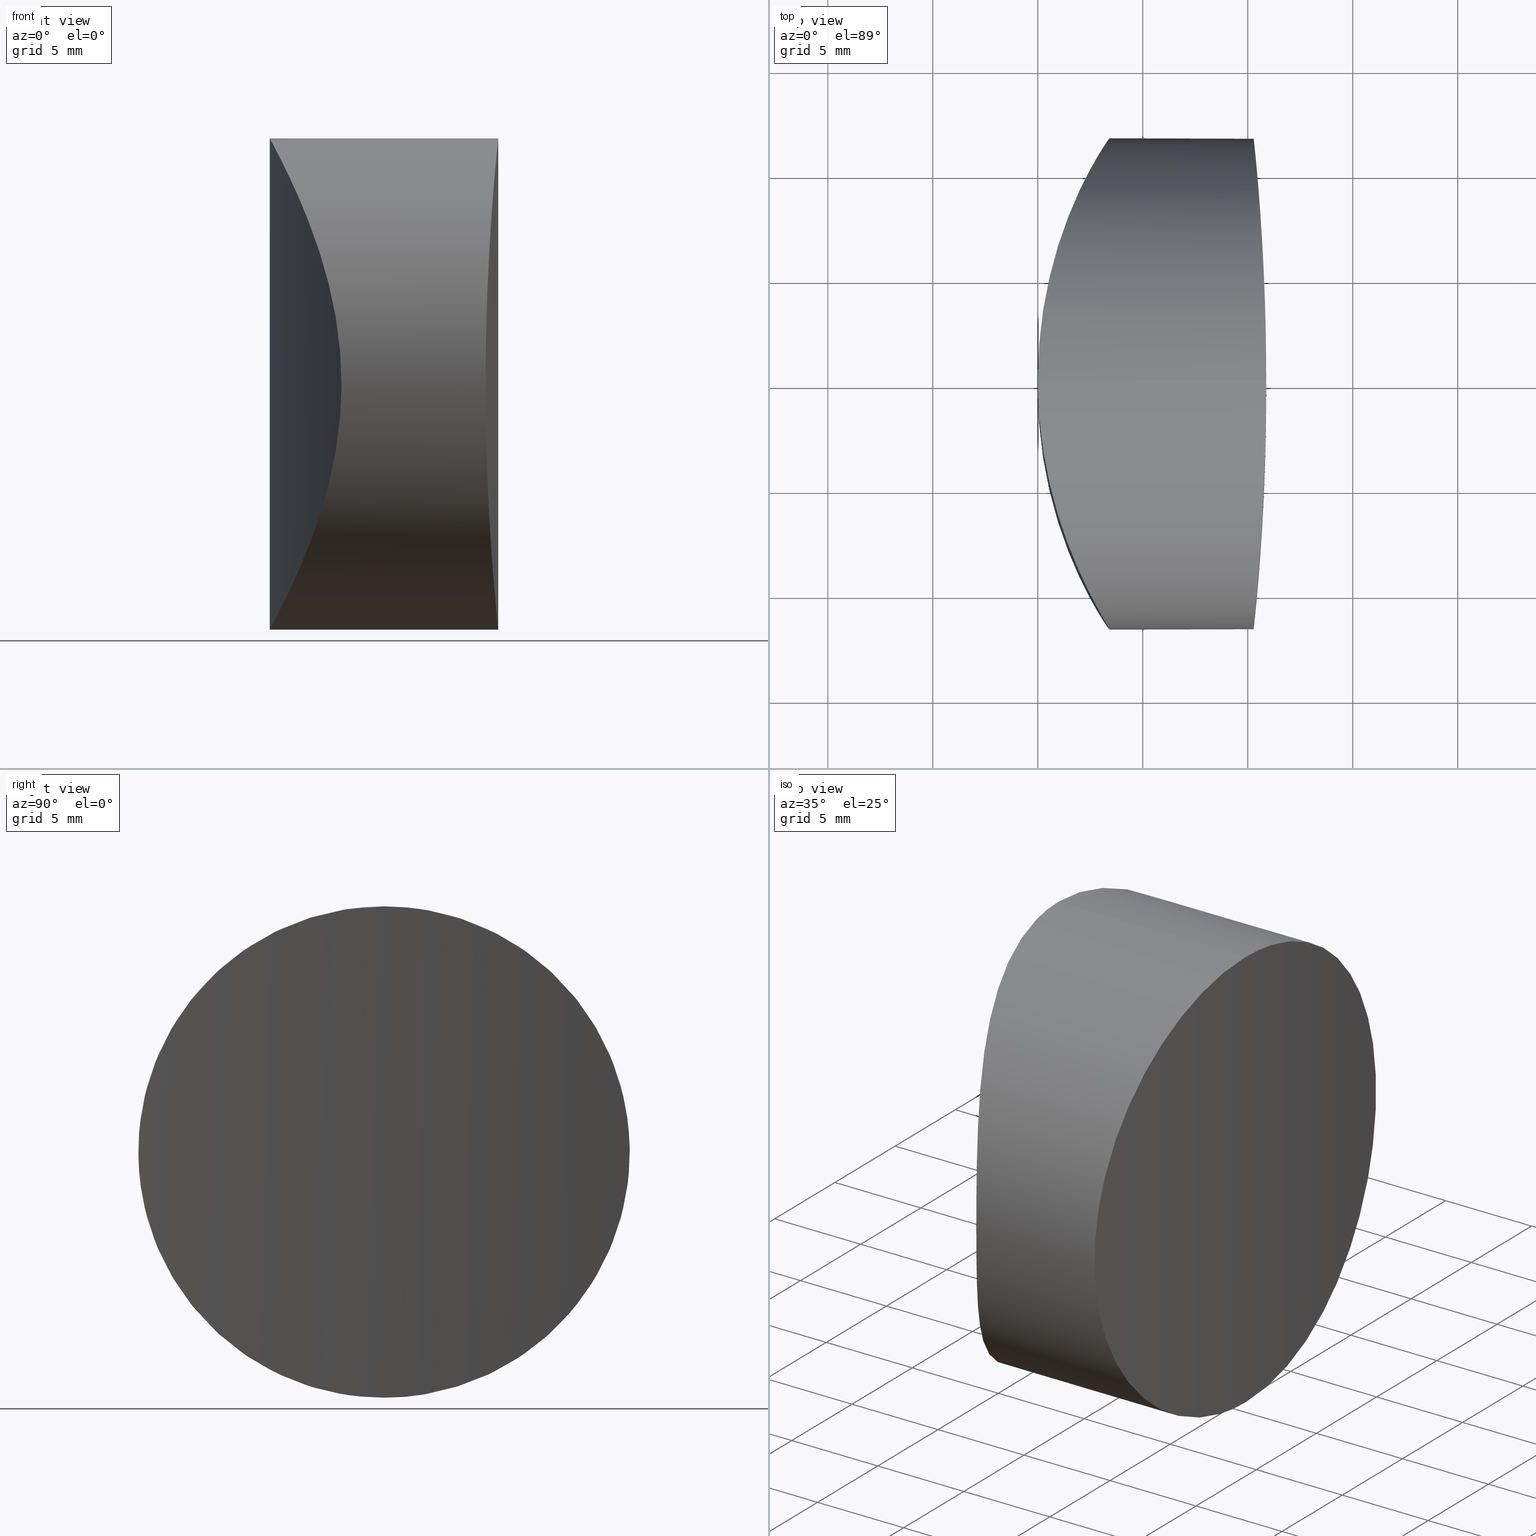
[diagram: canonical four-view strip — front | top / right | iso, engineering-drawing reading convention]
A machine part, canonical four-view strip (front | top / right | iso — engineering-drawing reading convention). The complete STEP part file that produces these views, byte-faithful:
ISO-10303-21;
HEADER;
FILE_DESCRIPTION (( 'STEP AP203' ),
    '1' );
FILE_NAME ('159005.STEP',
    '2024-12-10T01:32:58',
    ( '' ),
    ( '' ),
    'SwSTEP 2.0',
    'SolidWorks 2020',
    '' );
FILE_SCHEMA (( 'CONFIG_CONTROL_DESIGN' ));
ENDSEC;

DATA;
#1 = CARTESIAN_POINT ( 'NONE',  ( 0.2171290689899663673, 3.087936043502376382, 0.4081436948085568894 ) ) ;
#2 = B_SPLINE_CURVE_WITH_KNOTS ( 'NONE', 3,
 ( #18, #132, #47, #161, #20, #249, #364, #106, #76, #194, #311, #54, #118, #174, #166, #200, #288, #89, #198, #32, #30, #295, #234, #56, #113, #289, #145, #26, #171, #368, #317, #262, #345, #82, #297, #315, #139, #291, #3, #28, #204, #142, #116, #320, #255, #111, #60, #257, #53, #259 ),
 .UNSPECIFIED., .F., .F.,
 ( 4, 2, 2, 2, 2, 2, 2, 2, 2, 2, 2, 2, 2, 2, 2, 2, 2, 2, 2, 2, 2, 2, 2, 2, 4 ),
 ( 0.000000000000000000, 0.002332460034129029639, 0.003498690051193543375, 0.004664920068258057544, 0.006997380102387087616, 0.008163610119451604821, 0.009329840136516120291, 0.01049607015358063576, 0.01166230017064515297, 0.01399476020477418217, 0.01516099022183869591, 0.01632722023890320964, 0.01865968027303223017, 0.02099214030716125418, 0.02215837032422577138, 0.02332460034129027818, 0.02565706037541928136, 0.02682329039248378469, 0.02798952040954828455, 0.02915575042661279134, 0.03032198044367729120, 0.03265444047780629439, 0.03382067049487080118, 0.03498690051193531492, 0.03731936054606431463 ),
 .UNSPECIFIED. ) ;
#3 = CARTESIAN_POINT ( 'NONE',  ( 1.422428601362523581, -7.740781751606417238, 20.48137352358924801 ) ) ;
#4 = CARTESIAN_POINT ( 'NONE',  ( 10.88000000000002920, -0.7730682426357810000, 23.40000000000000213 ) ) ;
#5 = CARTESIAN_POINT ( 'NONE',  ( 1.211109342946811829, 7.161533304904742714, 20.95980323906664822 ) ) ;
#6 = AXIS2_PLACEMENT_3D ( 'NONE', #219, #220, #333 ) ;
#7 = COORDINATED_UNIVERSAL_TIME_OFFSET ( 8, 0, .AHEAD. ) ;
#8 = CARTESIAN_POINT ( 'NONE',  ( 10.48185059224751470, -9.520135231551074995, 4.888029907684962261 ) ) ;
#9 = CARTESIAN_POINT ( 'NONE',  ( 10.79291427432880823, -4.495804914807727037, 0.8781744884664779427 ) ) ;
#10 = PERSON_AND_ORGANIZATION_ROLE ( 'design_supplier' ) ;
#11 = CARTESIAN_POINT ( 'NONE',  ( 10.88000000000002387, 1.432836755002400721E-15, -1.134230257881103284E-16 ) ) ;
#12 = APPROVAL_PERSON_ORGANIZATION ( #123, #140, #181 ) ;
#13 = CARTESIAN_POINT ( 'NONE',  ( 10.50122807854665830, 9.293574890754799256, 4.550848265020642103 ) ) ;
#14 = DATE_AND_TIME ( #65, #126 ) ;
#15 = CARTESIAN_POINT ( 'NONE',  ( 10.31813825483695446, -11.30293830173775937, 14.74630687129934259 ) ) ;
#16 = DESIGN_CONTEXT ( 'detailed design', #264, 'design' ) ;
#17 = CYLINDRICAL_SURFACE ( 'NONE', #6, 21.74000000000001265 ) ;
#18 = CARTESIAN_POINT ( 'NONE',  ( -1.387778780781445676E-14, 1.432836755002403087E-15, 0.000000000000000000 ) ) ;
#19 = APPROVAL_PERSON_ORGANIZATION ( #178, #292, #128 ) ;
#20 = CARTESIAN_POINT ( 'NONE',  ( 0.2155747700643544651, -3.077103223239908925, 0.4051839034303297837 ) ) ;
#21 = CARTESIAN_POINT ( 'NONE',  ( 10.39421116239602938, 10.51531563082536458, 16.88705114881175717 ) ) ;
#22 = VERTEX_POINT ( 'NONE', #313 ) ;
#23 = CARTESIAN_POINT ( 'NONE',  ( 10.83986262752479313, 3.046402558084049694, 23.00291265617754988 ) ) ;
#24 = LOCAL_TIME ( 9, 32, 58.00000000000000000, #70 ) ;
#25 =( LENGTH_UNIT ( ) NAMED_UNIT ( * ) SI_UNIT ( .MILLI., .METRE. ) );
#26 = CARTESIAN_POINT ( 'NONE',  ( 3.223265934236171582, -11.39150033726429179, 14.39685331042552541 ) ) ;
#27 = CARTESIAN_POINT ( 'NONE',  ( 3.416977289869434831, 11.70018969140565268, 10.91256642571154600 ) ) ;
#28 = CARTESIAN_POINT ( 'NONE',  ( 1.210284504267568284, -7.159203260769887223, 20.96164303770010306 ) ) ;
#29 = DIRECTION ( 'NONE',  ( -0.000000000000000000, -0.000000000000000000, -1.000000000000000000 ) ) ;
#30 = CARTESIAN_POINT ( 'NONE',  ( 3.025179195936434251, -11.06349310497741101, 7.873883219777335185 ) ) ;
#31 = CARTESIAN_POINT ( 'NONE',  ( -1.387778780781445676E-14, 1.432836755002403087E-15, 0.000000000000000000 ) ) ;
#32 = CARTESIAN_POINT ( 'NONE',  ( 2.947937650750859007, -10.93227795703746885, 7.514390368155059008 ) ) ;
#33 = CARTESIAN_POINT ( 'NONE',  ( 1.107008075324728225, 6.856855324027286258, 21.18778377512142796 ) ) ;
#34 = APPROVAL_DATE_TIME ( #303, #292 ) ;
#35 = CARTESIAN_POINT ( 'NONE',  ( 10.80586506574320538, 4.125148095135657833, 0.7446365564376484780 ) ) ;
#36 = B_SPLINE_CURVE_WITH_KNOTS ( 'NONE', 3,
 ( #241, #353, #98, #124, #73, #217, #35, #93, #184, #277, #129, #304, #41, #155, #13, #243, #360, #99, #218, #149, #269, #325, #66, #130, #312, #162, #284, #157, #51, #165, #21, #279, #286, #49, #340, #225, #78, #244, #196, #134, #251, #338, #80, #23, #136, #361, #280, #366 ),
 .UNSPECIFIED., .F., .F.,
 ( 4, 2, 2, 2, 2, 2, 2, 2, 2, 1, 2, 2, 2, 2, 2, 2, 2, 2, 2, 2, 2, 1, 2, 2, 4 ),
 ( 0.01828928846055503585, 0.02057544053146269369, 0.02171851656691652435, 0.02286159260237035501, 0.02514774467327800939, 0.02629082070873184004, 0.02743389674418566723, 0.02972004881509332508, 0.03086312485054715574, 0.03200620088600098639, 0.03314927692145481358, 0.03429235295690864771, 0.03657850502781630209, 0.03886465709872396340, 0.04000773313417779753, 0.04115080916963162472, 0.04343696124053927909, 0.04458003727599310628, 0.04572311331144694041, 0.04800926538235458785, 0.04915234141780841504, 0.05029541745326224222, 0.05143849348871606941, 0.05258156952416989660, 0.05486772159507755098 ),
 .UNSPECIFIED. ) ;
#37 = CARTESIAN_POINT ( 'NONE',  ( 10.65733766431639573, -7.149049959769872231, 2.406345876367574022 ) ) ;
#38 = DATE_AND_TIME ( #212, #48 ) ;
#39 = CARTESIAN_POINT ( 'NONE',  ( 10.53980463767048725, -8.802363927132297761, 3.982701874530870434 ) ) ;
#40 = APPROVAL_DATE_TIME ( #38, #140 ) ;
#41 = CARTESIAN_POINT ( 'NONE',  ( 10.59912731714409517, 8.000667279729501757, 3.154557880954746540 ) ) ;
#42 = CARTESIAN_POINT ( 'NONE',  ( 10.87213610434040767, -1.537509865537029619, 0.07587314612748741194 ) ) ;
#43 = FACE_OUTER_BOUND ( 'NONE', #362, .T. ) ;
#44 = DIRECTION ( 'NONE',  ( -0.000000000000000000, -0.000000000000000000, -1.000000000000000000 ) ) ;
#45 = DIRECTION ( 'NONE',  ( -0.000000000000000000, -0.000000000000000000, -1.000000000000000000 ) ) ;
#46 = EDGE_CURVE ( 'NONE', #195, #252, #167, .T. ) ;
#47 = CARTESIAN_POINT ( 'NONE',  ( 0.04285845775192359541, -1.563333944474102788, 0.07910009200988064870 ) ) ;
#48 = LOCAL_TIME ( 9, 32, 58.00000000000000000, #7 ) ;
#49 = CARTESIAN_POINT ( 'NONE',  ( 10.50090090195983983, 9.290886234281821032, 18.82163880718880478 ) ) ;
#50 = ORIENTED_EDGE ( 'NONE', *, *, #125, .F. ) ;
#51 = CARTESIAN_POINT ( 'NONE',  ( 10.33954596989061869, 11.08605908923653161, 15.45988132495216583 ) ) ;
#52 = ORIENTED_EDGE ( 'NONE', *, *, #125, .T. ) ;
#53 = CARTESIAN_POINT ( 'NONE',  ( -1.392860978464971162E-14, -0.7902025822976713743, 23.39999999999998792 ) ) ;
#54 = CARTESIAN_POINT ( 'NONE',  ( 1.422744937138785248, -7.741579786913382222, 2.919370312651639043 ) ) ;
#55 = CARTESIAN_POINT ( 'NONE',  ( 0.2155747700643547149, 3.077103223239909813, 22.99481609656967152 ) ) ;
#56 = CARTESIAN_POINT ( 'NONE',  ( 3.365384741177640748, -11.62041709446674354, 10.13239785273151305 ) ) ;
#57 = CC_DESIGN_DATE_AND_TIME_ASSIGNMENT ( #14, #216, ( #231 ) ) ;
#58 = CARTESIAN_POINT ( 'NONE',  ( 0.4035763903870810410, 4.185088588868998372, 22.63260120139583975 ) ) ;
#59 = MANIFOLD_SOLID_BREP ( '�г�-����1', #236 ) ;
#60 = CARTESIAN_POINT ( 'NONE',  ( 0.1660015290229336082, -2.708688890726477894, 23.08877113486291321 ) ) ;
#61 = FACE_OUTER_BOUND ( 'NONE', #163, .T. ) ;
#62 = PERSON_AND_ORGANIZATION_ROLE ( 'creator' ) ;
#63 = PRODUCT ( '159005', '159005', '', ( #172 ) ) ;
#64 = CARTESIAN_POINT ( 'NONE',  ( 0.8086732756216764573, 5.911348775935024058, 21.82541254673819253 ) ) ;
#65 = CALENDAR_DATE ( 2024, 10, 12 ) ;
#66 = CARTESIAN_POINT ( 'NONE',  ( 10.28571339003972085, 11.62409991383637653, 10.16228933993476424 ) ) ;
#67 = PERSON_AND_ORGANIZATION ( #233, #101 ) ;
#68 = CARTESIAN_POINT ( 'NONE',  ( 10.76408821987714504, -5.187217375606534731, 22.21523339276854969 ) ) ;
#69 = CARTESIAN_POINT ( 'NONE',  ( 10.83986384809086800, -3.046356310864096972, 0.3970750748709923617 ) ) ;
#70 = COORDINATED_UNIVERSAL_TIME_OFFSET ( 8, 0, .AHEAD. ) ;
#71 = CARTESIAN_POINT ( 'NONE',  ( 10.73107924789856327, -5.858753475496249585, 21.85621316170171369 ) ) ;
#72 = EDGE_CURVE ( 'NONE', #195, #252, #278, .T. ) ;
#73 = CARTESIAN_POINT ( 'NONE',  ( 10.84043444140815815, 3.025119960359377469, 0.3913282216214603038 ) ) ;
#74 = CARTESIAN_POINT ( 'NONE',  ( 23.39999999999999858, 0.000000000000000000, 23.39999999999999858 ) ) ;
#75 = LINE ( 'NONE', #74, #143 ) ;
#76 = CARTESIAN_POINT ( 'NONE',  ( 0.8086732756216740148, -5.911348775935032052, 1.574587453261813152 ) ) ;
#77 = ORIENTED_EDGE ( 'NONE', *, *, #104, .T. ) ;
#78 = CARTESIAN_POINT ( 'NONE',  ( 10.61832271869568167, 7.737239475405381484, 20.50943713969718729 ) ) ;
#79 = ORIENTED_EDGE ( 'NONE', *, *, #337, .F. ) ;
#80 = CARTESIAN_POINT ( 'NONE',  ( 10.81793448439627525, 3.778384550068051961, 22.77972081105326296 ) ) ;
#81 = EDGE_LOOP ( 'NONE', ( #77, #52 ) ) ;
#82 = CARTESIAN_POINT ( 'NONE',  ( 2.184259034293712265, -9.500337694175719605, 18.53938992836294020 ) ) ;
#83 = CARTESIAN_POINT ( 'NONE',  ( 0.3350743667355896016, 3.820812002700966659, 22.76538885633120657 ) ) ;
#84 = APPLICATION_PROTOCOL_DEFINITION ( 'international standard', 'config_control_design', 1994, #254 ) ;
#85 = CARTESIAN_POINT ( 'NONE',  ( -1.366941770278989887E-14, 0.7891109655432210213, 3.794707603699258616E-16 ) ) ;
#86 = ADVANCED_FACE ( 'NONE', ( #61 ), #293, .T. ) ;
#87 = DIRECTION ( 'NONE',  ( 0.000000000000000000, 0.000000000000000000, 1.000000000000000000 ) ) ;
#88 = CARTESIAN_POINT ( 'NONE',  ( 1.530558240007198867, 8.017961239284881358, 3.171097245523014418 ) ) ;
#89 = CARTESIAN_POINT ( 'NONE',  ( 2.500510767972878856, -10.13363792806505614, 5.803525538992461819 ) ) ;
#90 = CARTESIAN_POINT ( 'NONE',  ( 2.500892373585566819, 10.13447688950725478, 5.804487998628315992 ) ) ;
#91 = CARTESIAN_POINT ( 'NONE',  ( 1.105855354865704410, 6.853327346297099609, 2.209725243393915850 ) ) ;
#92 = PERSON_AND_ORGANIZATION ( #233, #101 ) ;
#93 = CARTESIAN_POINT ( 'NONE',  ( 10.76409157544206607, 5.187142535174808167, 1.184730518471958094 ) ) ;
#94 = DATE_AND_TIME ( #354, #120 ) ;
#95 = CARTESIAN_POINT ( 'NONE',  ( 10.28570731973209718, -11.62412606199242404, 10.16681707393848022 ) ) ;
#96 = CARTESIAN_POINT ( 'NONE',  ( 10.35228852613060901, -10.95532912848157636, 7.574760721380108031 ) ) ;
#97 = SECURITY_CLASSIFICATION_LEVEL ( 'unclassified' ) ;
#98 = CARTESIAN_POINT ( 'NONE',  ( 10.87214040462832898, 1.533100186662105235, 0.07586331815639904552 ) ) ;
#99 = CARTESIAN_POINT ( 'NONE',  ( 10.39581746494011760, 10.49539491236451560, 6.515117555941806415 ) ) ;
#100 = UNCERTAINTY_MEASURE_WITH_UNIT (LENGTH_MEASURE( 1.000000000000000082E-05 ), #25, 'distance_accuracy_value', 'NONE');
#101 = ORGANIZATION ( 'δָ��', 'δָ��', '' ) ;
#102 = FACE_OUTER_BOUND ( 'NONE', #309, .T. ) ;
#103 = VERTEX_POINT ( 'NONE', #203 ) ;
#104 = EDGE_CURVE ( 'NONE', #22, #103, #110, .T. ) ;
#105 = CYLINDRICAL_SURFACE ( 'NONE', #187, 113.9600000000000222 ) ;
#106 = CARTESIAN_POINT ( 'NONE',  ( 0.6296649646665276601, -5.244302668428569625, 1.213140049391025821 ) ) ;
#107 = FACE_OUTER_BOUND ( 'NONE', #81, .T. ) ;
#108 = ORIENTED_EDGE ( 'NONE', *, *, #72, .T. ) ;
#109 = CYLINDRICAL_SURFACE ( 'NONE', #131, 11.69999999999999929 ) ;
#110 = B_SPLINE_CURVE_WITH_KNOTS ( 'NONE', 3,
 ( #296, #4, #323, #299, #232, #175, #298, #68, #71, #156, #213, #240, #239, #122, #121, #274, #182, #300, #271, #210, #15, #359, #188, #215, #331, #95, #357, #151, #302, #96, #179, #186, #8, #355, #39, #127, #305, #37, #329, #273, #332, #9, #153, #69, #328, #42, #237, #11 ),
 .UNSPECIFIED., .F., .F.,
 ( 4, 2, 2, 2, 2, 2, 2, 2, 2, 1, 2, 2, 2, 2, 2, 2, 2, 2, 2, 2, 2, 1, 2, 2, 4 ),
 ( -0.01828914467177522596, -0.01600299260100459739, -0.01485991656561928137, -0.01371684053023396535, -0.01143068845946333158, -0.01028761242407801556, -0.009144536388692699538, -0.006858384317922069234, -0.005715308282536754950, -0.004572232247151440665, -0.003429156211766119441, -0.002286080176380794748, 7.189438985810703286E-08, 0.002286223965160510962, 0.003429300000545837390, 0.004572376035931163818, 0.006858528106701809735, 0.008001604142087132693, 0.009144680177472452182, 0.01143083224824310157, 0.01257390828362842800, 0.01371698431901374748, 0.01486006035439907391, 0.01600313638978439340, 0.01828928846055503932 ),
 .UNSPECIFIED. ) ;
#111 = CARTESIAN_POINT ( 'NONE',  ( 0.2171290689899616488, -3.087936043502371053, 22.99185630519144752 ) ) ;
#112 = CARTESIAN_POINT ( 'NONE',  ( 1.748412977376856636, 8.546675452954128005, 19.69901185131884347 ) ) ;
#113 = CARTESIAN_POINT ( 'NONE',  ( 3.416734608021715136, -11.69980963203958346, 10.90693945828489575 ) ) ;
#114 = CARTESIAN_POINT ( 'NONE',  ( 3.025179195936428478, 11.06349310497740923, 15.52611678022267760 ) ) ;
#115 = CARTESIAN_POINT ( 'NONE',  ( 0.6304195769015035200, 5.246898284961709180, 1.214677651979704676 ) ) ;
#116 = CARTESIAN_POINT ( 'NONE',  ( 0.6304195769015005224, -5.246898284961703851, 22.18532234802028924 ) ) ;
#117 = CARTESIAN_POINT ( 'NONE',  ( 1.422428601362525580, 7.740781751606427008, 2.918626476410770110 ) ) ;
#118 = CARTESIAN_POINT ( 'NONE',  ( 1.530735416501544321, -8.018406199201798756, 3.171517490182088839 ) ) ;
#119 = CARTESIAN_POINT ( 'NONE',  ( 1.530735416501543211, 8.018406199201788098, 20.22848250981791196 ) ) ;
#120 = LOCAL_TIME ( 9, 32, 58.00000000000000000, #209 ) ;
#121 = CARTESIAN_POINT ( 'NONE',  ( 10.50121971916500918, -9.293676953448837708, 18.84902052309123377 ) ) ;
#122 = CARTESIAN_POINT ( 'NONE',  ( 10.54027012202629265, -8.809544656932679629, 19.43711651451006617 ) ) ;
#123 = PERSON_AND_ORGANIZATION ( #233, #101 ) ;
#124 = CARTESIAN_POINT ( 'NONE',  ( 10.84969396551632137, 2.654469376055285768, 0.2987268352733525312 ) ) ;
#125 = EDGE_CURVE ( 'NONE', #103, #22, #36, .T. ) ;
#126 = LOCAL_TIME ( 9, 32, 58.00000000000000000, #324 ) ;
#127 = CARTESIAN_POINT ( 'NONE',  ( 10.55947956538253329, -8.545364207714689186, 3.699249398115903364 ) ) ;
#128 = APPROVAL_ROLE ( '' ) ;
#129 = CARTESIAN_POINT ( 'NONE',  ( 10.65764662283232589, 7.121683926836282374, 2.409148654525745226 ) ) ;
#130 = CARTESIAN_POINT ( 'NONE',  ( 10.27780490873718122, 11.69998573814912213, 10.92673523280333825 ) ) ;
#131 = AXIS2_PLACEMENT_3D ( 'NONE', #189, #247, #283 ) ;
#132 = CARTESIAN_POINT ( 'NONE',  ( -1.392296289833480181E-14, -0.7896565852898700388, -9.035018104045945883E-17 ) ) ;
#133 = CARTESIAN_POINT ( 'NONE',  ( -103.0799999999999841, -1.262365920561091662E-14, 23.39999999999999858 ) ) ;
#134 = CARTESIAN_POINT ( 'NONE',  ( 10.72977194712811055, 5.859301136208104666, 21.83434351946196017 ) ) ;
#135 = ORIENTED_EDGE ( 'NONE', *, *, #365, .T. ) ;
#136 = CARTESIAN_POINT ( 'NONE',  ( 10.84931101554204602, 2.671443562037683073, 23.09745407633371883 ) ) ;
#137 = APPROVAL_PERSON_ORGANIZATION ( #326, #369, #301 ) ;
#138 = CARTESIAN_POINT ( 'NONE',  ( 1.210284504267570060, 7.159203260769898769, 2.438356962299907060 ) ) ;
#139 = CARTESIAN_POINT ( 'NONE',  ( 1.748259531219496621, -8.546318020887106570, 19.69939578442397377 ) ) ;
#140 = APPROVAL ( #176, 'δָ��' ) ;
#141 = CARTESIAN_POINT ( 'NONE',  ( 2.950137525748458334, 10.93606710626872491, 7.524131071718902497 ) ) ;
#142 = CARTESIAN_POINT ( 'NONE',  ( 0.8087231052829361166, -5.911254635353943243, 21.82525117325589292 ) ) ;
#144 = DIRECTION ( 'NONE',  ( -1.000000000000000000, 0.000000000000000000, 0.000000000000000000 ) ) ;
#143 = VECTOR ( 'NONE', #335, 1000.000000000000000 ) ;
#145 = CARTESIAN_POINT ( 'NONE',  ( 3.365872698489835724, -11.62116721729539925, 13.26066119162392454 ) ) ;
#146 = CARTESIAN_POINT ( 'NONE',  ( 2.695766784431985030, 10.49093017339420264, 16.93512190664645800 ) ) ;
#147 = CARTESIAN_POINT ( 'NONE',  ( 3.365384741177641192, 11.62041709446674354, 13.26760214726849441 ) ) ;
#148 = CALENDAR_DATE ( 2024, 10, 12 ) ;
#149 = CARTESIAN_POINT ( 'NONE',  ( 10.34016934413285504, 11.07968235369150278, 7.921503789661008099 ) ) ;
#150 = APPROVAL_STATUS ( 'not_yet_approved' ) ;
#151 = CARTESIAN_POINT ( 'NONE',  ( 10.31756873522740214, -11.30864803601399515, 8.674791006896604983 ) ) ;
#152 = APPROVAL_DATE_TIME ( #94, #369 ) ;
#153 = CARTESIAN_POINT ( 'NONE',  ( 10.81793633531279752, -3.778328267545845165, 0.6202601953607184138 ) ) ;
#154 = SHAPE_DEFINITION_REPRESENTATION ( #267, #287 ) ;
#155 = CARTESIAN_POINT ( 'NONE',  ( 10.54027803646199146, 8.809442488070246213, 3.962768274574550720 ) ) ;
#156 = CARTESIAN_POINT ( 'NONE',  ( 10.67666962675563980, -6.811974999491502203, 21.22013188587444077 ) ) ;
#157 = CARTESIAN_POINT ( 'NONE',  ( 10.31756257531834287, 11.30870974616185798, 14.72497893956831838 ) ) ;
#158 = DIRECTION ( 'NONE',  ( -1.000000000000000000, 0.000000000000000000, 0.000000000000000000 ) ) ;
#159 = CARTESIAN_POINT ( 'NONE',  ( -1.387778780781445676E-14, 0.000000000000000000, 23.39999999999999858 ) ) ;
#160 = CC_DESIGN_APPROVAL ( #292, ( #356 ) ) ;
#161 = CARTESIAN_POINT ( 'NONE',  ( 0.1651254470469942226, -2.701477198851466976, 0.3095718751465247331 ) ) ;
#162 = CARTESIAN_POINT ( 'NONE',  ( 10.28570372608908023, 11.62416093270490869, 13.23292420902280142 ) ) ;
#163 = EDGE_LOOP ( 'NONE', ( #135, #226 ) ) ;
#164 = CC_DESIGN_PERSON_AND_ORGANIZATION_ASSIGNMENT ( #67, #10, ( #356 ) ) ;
#165 = CARTESIAN_POINT ( 'NONE',  ( 10.35228095970797213, 10.95540741888938996, 15.82503198717424908 ) ) ;
#166 = CARTESIAN_POINT ( 'NONE',  ( 1.858106873842140461, -8.798117498257193247, 3.978309649546841964 ) ) ;
#167 = LINE ( 'NONE', #190, #246 ) ;
#168 = ADVANCED_FACE ( 'NONE', ( #102 ), #363, .T. ) ;
#169 =( NAMED_UNIT ( * ) PLANE_ANGLE_UNIT ( ) SI_UNIT ( $, .RADIAN. ) );
#170 = CARTESIAN_POINT ( 'NONE',  ( 2.185482351053666061, 9.502824864673042882, 18.53583036455410138 ) ) ;
#171 = CARTESIAN_POINT ( 'NONE',  ( 3.164755822425038279, -11.29626628819292833, 14.77163951491083793 ) ) ;
#172 = MECHANICAL_CONTEXT ( 'NONE', #254, 'mechanical' ) ;
#173 = CARTESIAN_POINT ( 'NONE',  ( 2.184259034293720703, 9.500337694175735592, 4.860610071637071705 ) ) ;
#174 = CARTESIAN_POINT ( 'NONE',  ( 1.748412977376857969, -8.546675452954140439, 3.700988148681173762 ) ) ;
#175 = CARTESIAN_POINT ( 'NONE',  ( 10.81854549550333822, -3.760062777620389429, 22.78599751182165534 ) ) ;
#176 = APPROVAL_STATUS ( 'not_yet_approved' ) ;
#177 = CARTESIAN_POINT ( 'NONE',  ( 0.04292725376566206008, 1.565840469037747651, 0.07921872240722413472 ) ) ;
#178 = PERSON_AND_ORGANIZATION ( #233, #101 ) ;
#179 = CARTESIAN_POINT ( 'NONE',  ( 10.39421952282298456, -10.51522562957901563, 6.512768403479020307 ) ) ;
#180 = VECTOR ( 'NONE', #158, 1000.000000000000000 ) ;
#181 = APPROVAL_ROLE ( '' ) ;
#182 = CARTESIAN_POINT ( 'NONE',  ( 10.42862590604856798, -10.13441204424837139, 17.55918227396657372 ) ) ;
#183 = PERSON_AND_ORGANIZATION_ROLE ( 'design_owner' ) ;
#184 = CARTESIAN_POINT ( 'NONE',  ( 10.73108345937149721, 5.858670954183250679, 1.543740172877004602 ) ) ;
#185 = PERSON_AND_ORGANIZATION ( #233, #101 ) ;
#186 = CARTESIAN_POINT ( 'NONE',  ( 10.42733081119106409, -10.15620948832227732, 5.841241232840276965 ) ) ;
#187 = AXIS2_PLACEMENT_3D ( 'NONE', #133, #44, #191 ) ;
#188 = CARTESIAN_POINT ( 'NONE',  ( 10.28570976298882655, -11.62413510069155542, 13.23744995759516030 ) ) ;
#189 = CARTESIAN_POINT ( 'NONE',  ( 23.39999999999999858, 0.000000000000000000, 11.69999999999999929 ) ) ;
#190 = CARTESIAN_POINT ( 'NONE',  ( -1.387778780781445676E-14, 0.000000000000000000, 23.39999999999999858 ) ) ;
#191 = DIRECTION ( 'NONE',  ( -1.000000000000000000, 0.000000000000000000, 0.000000000000000000 ) ) ;
#192 = ORIENTED_EDGE ( 'NONE', *, *, #343, .T. ) ;
#193 = CC_DESIGN_DATE_AND_TIME_ASSIGNMENT ( #276, #266, ( #214 ) ) ;
#194 = CARTESIAN_POINT ( 'NONE',  ( 1.107008075324726226, -6.856855324027293364, 2.212216224878578608 ) ) ;
#195 = VERTEX_POINT ( 'NONE', #306 ) ;
#196 = CARTESIAN_POINT ( 'NONE',  ( 10.71215558028058190, 6.191062399251881843, 21.63521419769149290 ) ) ;
#197 = EDGE_LOOP ( 'NONE', ( #223, #248, #339, #285 ) ) ;
#198 = CARTESIAN_POINT ( 'NONE',  ( 2.695766784431988583, -10.49093017339420264, 6.464878093353545907 ) ) ;
#199 = CARTESIAN_POINT ( 'NONE',  ( 1.422744937138781918, 7.741579786913376893, 20.48062968734836531 ) ) ;
#200 = CARTESIAN_POINT ( 'NONE',  ( 2.076402670122011074, -9.275747185079907808, 4.559139579861329672 ) ) ;
#201 = CARTESIAN_POINT ( 'NONE',  ( 1.858106873842137574, 8.798117498257182589, 19.42169035045316861 ) ) ;
#202 = DIRECTION ( 'NONE',  ( 1.000000000000000000, 0.000000000000000000, 0.000000000000000000 ) ) ;
#203 = CARTESIAN_POINT ( 'NONE',  ( 10.88000000000002387, 1.432836755002400721E-15, -1.134230257881103284E-16 ) ) ;
#204 = CARTESIAN_POINT ( 'NONE',  ( 1.105855354865703521, -6.853327346297091616, 21.19027475660608317 ) ) ;
#205 = CC_DESIGN_PERSON_AND_ORGANIZATION_ASSIGNMENT ( #92, #62, ( #231 ) ) ;
#206 = CARTESIAN_POINT ( 'NONE',  ( 3.221713588329054190, 11.38898209740906786, 14.40766583430629844 ) ) ;
#207 = PERSON_AND_ORGANIZATION_ROLE ( 'classification_officer' ) ;
#208 = CARTESIAN_POINT ( 'NONE',  ( 21.73999999999999844, 0.000000000000000000, 23.39999999999999858 ) ) ;
#209 = COORDINATED_UNIVERSAL_TIME_OFFSET ( 8, 0, .AHEAD. ) ;
#210 = CARTESIAN_POINT ( 'NONE',  ( 10.34016220361258576, -11.07975539541459398, 15.47828270313343424 ) ) ;
#211 = CC_DESIGN_PERSON_AND_ORGANIZATION_ASSIGNMENT ( #185, #270, ( #356 ) ) ;
#212 = CALENDAR_DATE ( 2024, 10, 12 ) ;
#213 = CARTESIAN_POINT ( 'NONE',  ( 10.65764062755970265, -7.121779738377882474, 20.99077812427604783 ) ) ;
#214 = SECURITY_CLASSIFICATION ( '', '', #97 ) ;
#215 = CARTESIAN_POINT ( 'NONE',  ( 10.27780293937206402, -11.70000481873913323, 12.47298883437921013 ) ) ;
#216 = DATE_TIME_ROLE ( 'creation_date' ) ;
#217 = CARTESIAN_POINT ( 'NONE',  ( 10.81854735595445050, 3.760005890572712062, 0.6139834084321127428 ) ) ;
#218 = CARTESIAN_POINT ( 'NONE',  ( 10.36529587858852786, 10.82176078115358209, 7.204040509720106122 ) ) ;
#219 = CARTESIAN_POINT ( 'NONE',  ( 21.73999999999999844, 0.000000000000000000, 23.39999999999999858 ) ) ;
#220 = DIRECTION ( 'NONE',  ( -0.000000000000000000, -0.000000000000000000, -1.000000000000000000 ) ) ;
#221 = CC_DESIGN_PERSON_AND_ORGANIZATION_ASSIGNMENT ( #242, #207, ( #214 ) ) ;
#222 = CARTESIAN_POINT ( 'NONE',  ( -1.387778780781445676E-14, 1.432836755002403087E-15, 0.000000000000000000 ) ) ;
#223 = ORIENTED_EDGE ( 'NONE', *, *, #343, .F. ) ;
#224 = CC_DESIGN_SECURITY_CLASSIFICATION ( #214, ( #356 ) ) ;
#225 = CARTESIAN_POINT ( 'NONE',  ( 10.55947191846611943, 8.545465933948078074, 19.70064224461041391 ) ) ;
#226 = ORIENTED_EDGE ( 'NONE', *, *, #46, .T. ) ;
#227 = FACE_OUTER_BOUND ( 'NONE', #197, .T. ) ;
#228 = CARTESIAN_POINT ( 'NONE',  ( 3.164755822425035614, 11.29626628819293366, 8.628360485089167753 ) ) ;
#229 = CARTESIAN_POINT ( 'NONE',  ( 3.223265934236171582, 11.39150033726429001, 9.003146689574480277 ) ) ;
#230 = CARTESIAN_POINT ( 'NONE',  ( 3.162365164716450572, 11.29233728414770788, 14.78596305240871445 ) ) ;
#231 = PRODUCT_DEFINITION ( 'δ֪', '', #356, #16 ) ;
#232 = CARTESIAN_POINT ( 'NONE',  ( 10.84043323606130471, -3.025166010484351631, 23.00865967003927182 ) ) ;
#233 = PERSON ( 'δָ��', 'δָ��', 'δָ��', ('δָ��'), ('δָ��'), ('δָ��') ) ;
#234 = CARTESIAN_POINT ( 'NONE',  ( 3.221713588329055522, -11.38898209740907141, 8.992334165693707249 ) ) ;
#236 = CLOSED_SHELL ( 'NONE', ( #168, #86, #261, #238, #250 ) ) ;
#235 = CARTESIAN_POINT ( 'NONE',  ( 2.947937650750856342, 10.93227795703747418, 15.88560963184494668 ) ) ;
#237 = CARTESIAN_POINT ( 'NONE',  ( 10.88000000000002565, -0.7730562110542879006, -1.185846126156019735E-16 ) ) ;
#238 = ADVANCED_FACE ( 'NONE', ( #107 ), #105, .T. ) ;
#239 = CARTESIAN_POINT ( 'NONE',  ( 10.59912028348751534, -8.000767243743542423, 20.24534877970695845 ) ) ;
#240 = CARTESIAN_POINT ( 'NONE',  ( 10.61878510601941095, -7.717312199276885387, 20.50235180025135406 ) ) ;
#241 = CARTESIAN_POINT ( 'NONE',  ( 10.88000000000002387, 1.432836755002400721E-15, -1.134230257881103284E-16 ) ) ;
#242 = PERSON_AND_ORGANIZATION ( #233, #101 ) ;
#243 = CARTESIAN_POINT ( 'NONE',  ( 10.44629501255199600, 9.935190850871606472, 5.508900828470463473 ) ) ;
#244 = CARTESIAN_POINT ( 'NONE',  ( 10.65733174527155569, 7.149144593506618683, 20.99358223307344318 ) ) ;
#245 = ORIENTED_EDGE ( 'NONE', *, *, #46, .F. ) ;
#246 = VECTOR ( 'NONE', #45, 1000.000000000000000 ) ;
#247 = DIRECTION ( 'NONE',  ( -1.000000000000000000, 0.000000000000000000, 0.000000000000000000 ) ) ;
#248 = ORIENTED_EDGE ( 'NONE', *, *, #104, .F. ) ;
#249 = CARTESIAN_POINT ( 'NONE',  ( 0.3350743667355893241, -3.820812002700966659, 0.6346111436687870144 ) ) ;
#250 = ADVANCED_FACE ( 'NONE', ( #227 ), #109, .T. ) ;
#251 = CARTESIAN_POINT ( 'NONE',  ( 10.76249334446181471, 5.184815288729781813, 22.19542847133856256 ) ) ;
#252 = VERTEX_POINT ( 'NONE', #222 ) ;
#253 = DIRECTION ( 'NONE',  ( 0.000000000000000000, 0.000000000000000000, 1.000000000000000000 ) ) ;
#254 = APPLICATION_CONTEXT ( 'configuration controlled 3d designs of mechanical parts and assemblies' ) ;
#255 = CARTESIAN_POINT ( 'NONE',  ( 0.3369451215246287434, -3.831261409855714284, 22.76177218329880958 ) ) ;
#256 = CARTESIAN_POINT ( 'NONE',  ( 1.857837929807552024, 8.797493441792283875, 3.977639526115003932 ) ) ;
#257 = CARTESIAN_POINT ( 'NONE',  ( 0.04292725376565816736, -1.565840469037733884, 23.32078127759277564 ) ) ;
#258 = CARTESIAN_POINT ( 'NONE',  ( 2.075653073014935401, 9.274142514483513011, 4.557099834937559990 ) ) ;
#259 = CARTESIAN_POINT ( 'NONE',  ( -1.387778780781445676E-14, 0.000000000000000000, 23.39999999999999858 ) ) ;
#260 = CARTESIAN_POINT ( 'NONE',  ( 2.697069189340317585, 10.49332970781069641, 6.469148073290281076 ) ) ;
#261 = ADVANCED_FACE ( 'NONE', ( #43 ), #17, .T. ) ;
#262 = CARTESIAN_POINT ( 'NONE',  ( 2.697069189340317585, -10.49332970781068752, 16.93085192670971750 ) ) ;
#263 = CARTESIAN_POINT ( 'NONE',  ( 0.3369451215246339615, 3.831261409855721389, 0.6382278167011953274 ) ) ;
#264 = APPLICATION_CONTEXT ( 'configuration controlled 3d designs of mechanical parts and assemblies' ) ;
#265 = CARTESIAN_POINT ( 'NONE',  ( 0.04285845775192374113, 1.563333944474103454, 23.32089990799011403 ) ) ;
#266 = DATE_TIME_ROLE ( 'classification_date' ) ;
#267 = PRODUCT_DEFINITION_SHAPE ( 'NONE', 'NONE',  #231 ) ;
#268 = AXIS2_PLACEMENT_3D ( 'NONE', #347, #87, #202 ) ;
#269 = CARTESIAN_POINT ( 'NONE',  ( 10.31814448259212469, 11.30287587367209312, 8.653462349713976209 ) ) ;
#270 = PERSON_AND_ORGANIZATION_ROLE ( 'creator' ) ;
#271 = CARTESIAN_POINT ( 'NONE',  ( 10.36528800477064038, -10.82184315345358350, 16.19576271678333157 ) ) ;
#272 = APPLICATION_PROTOCOL_DEFINITION ( 'international standard', 'config_control_design', 1994, #264 ) ;
#273 = CARTESIAN_POINT ( 'NONE',  ( 10.72977620026864365, -5.859218285165959550, 1.565608815019524647 ) ) ;
#274 = CARTESIAN_POINT ( 'NONE',  ( 10.44628636796797672, -9.935289605754295650, 17.89094111492365613 ) ) ;
#275 = CC_DESIGN_PERSON_AND_ORGANIZATION_ASSIGNMENT ( #341, #183, ( #63 ) ) ;
#276 = DATE_AND_TIME ( #148, #24 ) ;
#277 = CARTESIAN_POINT ( 'NONE',  ( 10.67667514215319358, 6.811882741869895952, 2.179802351454524167 ) ) ;
#278 = B_SPLINE_CURVE_WITH_KNOTS ( 'NONE', 3,
 ( #159, #281, #265, #318, #55, #83, #58, #370, #64, #33, #5, #199, #119, #112, #201, #316, #170, #319, #146, #235, #114, #230, #206, #147, #290, #27, #352, #229, #228, #348, #141, #260, #90, #173, #258, #256, #342, #88, #117, #138, #91, #350, #115, #346, #263, #1, #321, #177, #85, #31 ),
 .UNSPECIFIED., .F., .F.,
 ( 4, 2, 2, 2, 2, 2, 2, 2, 2, 2, 2, 2, 2, 2, 2, 2, 2, 2, 2, 2, 2, 2, 2, 2, 4 ),
 ( 0.03731936054606431463, 0.03965020894764748061, 0.04081563314843906359, 0.04198105734923064658, 0.04431190575081381255, 0.04547732995160538860, 0.04664275415239697159, 0.04780817835318855458, 0.04897360255398013062, 0.05130445095556328966, 0.05246987515635486571, 0.05363529935714644870, 0.05596614775872960079, 0.05829699616031275289, 0.05946242036110432894, 0.06062784456189590498, 0.06295869296347907096, 0.06412411716427064701, 0.06528954136506222306, 0.06645496556585381298, 0.06762038976664538903, 0.06995123816822854113, 0.07111666236902011717, 0.07228208656981169322, 0.07461293497139485920 ),
 .UNSPECIFIED. ) ;
#279 = CARTESIAN_POINT ( 'NONE',  ( 10.42732226382473115, 10.15630486359179763, 17.55859485549505550 ) ) ;
#280 = CARTESIAN_POINT ( 'NONE',  ( 10.88000000000002387, 0.7730682426821160469, 23.39999999999999858 ) ) ;
#281 = CARTESIAN_POINT ( 'NONE',  ( -1.388583462081337261E-14, 0.7896565852898703719, 23.40000000000000213 ) ) ;
#282 = AXIS2_PLACEMENT_3D ( 'NONE', #208, #29, #144 ) ;
#283 = DIRECTION ( 'NONE',  ( 0.000000000000000000, 0.000000000000000000, 1.000000000000000000 ) ) ;
#284 = CARTESIAN_POINT ( 'NONE',  ( 10.30825929136837082, 11.40130823847099606, 14.35431986700570839 ) ) ;
#285 = ORIENTED_EDGE ( 'NONE', *, *, #365, .F. ) ;
#286 = CARTESIAN_POINT ( 'NONE',  ( 10.48184213806248444, 9.520236037319408595, 18.51182951449077763 ) ) ;
#287 = ADVANCED_BREP_SHAPE_REPRESENTATION ( '159005', ( #59, #268 ), #344 ) ;
#288 = CARTESIAN_POINT ( 'NONE',  ( 2.185482351053671390, -9.502824864673060645, 4.864169635445910522 ) ) ;
#289 = CARTESIAN_POINT ( 'NONE',  ( 3.416977289869437495, -11.70018969140565090, 12.48743357428846501 ) ) ;
#290 = CARTESIAN_POINT ( 'NONE',  ( 3.416734608021711583, 11.69980963203958346, 12.49306054171511526 ) ) ;
#291 = CARTESIAN_POINT ( 'NONE',  ( 1.530558240007194204, -8.017961239284881358, 20.22890275447698727 ) ) ;
#292 = APPROVAL ( #322, 'δָ��' ) ;
#293 = CYLINDRICAL_SURFACE ( 'NONE', #282, 21.74000000000001265 ) ;
#294 = AXIS2_PLACEMENT_3D ( 'NONE', #336, #367, #253 ) ;
#295 = CARTESIAN_POINT ( 'NONE',  ( 3.162365164716455901, -11.29233728414770965, 8.614036947591293014 ) ) ;
#296 = CARTESIAN_POINT ( 'NONE',  ( 10.88000000000002743, -1.729440345650542484E-30, 23.39999999999999858 ) ) ;
#297 = CARTESIAN_POINT ( 'NONE',  ( 2.075653073014932293, -9.274142514483509459, 18.84290016506243504 ) ) ;
#298 = CARTESIAN_POINT ( 'NONE',  ( 10.80586284262859031, -4.125209845478772230, 22.65534039098339392 ) ) ;
#299 = CARTESIAN_POINT ( 'NONE',  ( 10.84969303972943955, -2.654509902726357229, 23.10126392842856902 ) ) ;
#300 = CARTESIAN_POINT ( 'NONE',  ( 10.39580917500703805, -10.49548448806796941, 16.88470151145610387 ) ) ;
#301 = APPROVAL_ROLE ( '' ) ;
#302 = CARTESIAN_POINT ( 'NONE',  ( 10.33955315377812312, -11.08598565127903157, 7.939902661628001290 ) ) ;
#303 = DATE_AND_TIME ( #330, #327 ) ;
#304 = CARTESIAN_POINT ( 'NONE',  ( 10.61879180989724958, 7.717213371657029697, 2.897561789266739130 ) ) ;
#305 = CARTESIAN_POINT ( 'NONE',  ( 10.61832940700501382, -7.737141034652839977, 2.890477472981223261 ) ) ;
#306 = CARTESIAN_POINT ( 'NONE',  ( -1.387778780781445676E-14, 0.000000000000000000, 23.39999999999999858 ) ) ;
#307 = PRODUCT_RELATED_PRODUCT_CATEGORY ( 'detail', '', ( #63 ) ) ;
#308 = LINE ( 'NONE', #310, #180 ) ;
#309 = EDGE_LOOP ( 'NONE', ( #50, #192, #334, #79 ) ) ;
#310 = CARTESIAN_POINT ( 'NONE',  ( 23.39999999999999858, 1.432836755002403087E-15, 0.000000000000000000 ) ) ;
#311 = CARTESIAN_POINT ( 'NONE',  ( 1.211109342946814715, -7.161533304904748931, 2.440196760933348141 ) ) ;
#312 = CARTESIAN_POINT ( 'NONE',  ( 10.27780196513099398, 11.70001425786978189, 12.47283312475877537 ) ) ;
#313 = CARTESIAN_POINT ( 'NONE',  ( 10.88000000000002743, -1.729440345650542484E-30, 23.39999999999999858 ) ) ;
#314 = CC_DESIGN_APPROVAL ( #369, ( #231 ) ) ;
#315 = CARTESIAN_POINT ( 'NONE',  ( 1.857837929807548250, -8.797493441792276769, 19.42236047388499287 ) ) ;
#316 = CARTESIAN_POINT ( 'NONE',  ( 2.076402670122007521, 9.275747185079897150, 18.84086042013868578 ) ) ;
#317 = CARTESIAN_POINT ( 'NONE',  ( 2.950137525748458334, -10.93606710626871958, 15.87586892828110230 ) ) ;
#318 = CARTESIAN_POINT ( 'NONE',  ( 0.1651254470469941116, 2.701477198851464756, 23.09042812485346730 ) ) ;
#319 = CARTESIAN_POINT ( 'NONE',  ( 2.500510767972875303, 10.13363792806504726, 17.59647446100755630 ) ) ;
#320 = CARTESIAN_POINT ( 'NONE',  ( 0.4050502599883626376, -4.192457680666223929, 22.62972004145027327 ) ) ;
#321 = CARTESIAN_POINT ( 'NONE',  ( 0.1660015290229380769, 2.708688890726489884, 0.3112288651370858084 ) ) ;
#322 = APPROVAL_STATUS ( 'not_yet_approved' ) ;
#323 = CARTESIAN_POINT ( 'NONE',  ( 10.87214016010262618, -1.533123848519981625, 23.32413434293214394 ) ) ;
#324 = COORDINATED_UNIVERSAL_TIME_OFFSET ( 8, 0, .AHEAD. ) ;
#325 = CARTESIAN_POINT ( 'NONE',  ( 10.30865112324959121, 11.39741919295170369, 9.028408908465134886 ) ) ;
#326 = PERSON_AND_ORGANIZATION ( #233, #101 ) ;
#327 = LOCAL_TIME ( 9, 32, 58.00000000000000000, #358 ) ;
#328 = CARTESIAN_POINT ( 'NONE',  ( 10.84931195885142508, -2.671402518323427344, 0.3025365097982797846 ) ) ;
#329 = CARTESIAN_POINT ( 'NONE',  ( 10.71216029997809471, -6.190975515829164166, 1.764731873942569473 ) ) ;
#330 = CALENDAR_DATE ( 2024, 10, 12 ) ;
#331 = CARTESIAN_POINT ( 'NONE',  ( 10.27780393413212146, -11.69999518080622636, 10.92686529911986604 ) ) ;
#332 = CARTESIAN_POINT ( 'NONE',  ( 10.76249673015892938, -5.184740679360049675, 1.204534898765933226 ) ) ;
#333 = DIRECTION ( 'NONE',  ( -1.000000000000000000, 0.000000000000000000, 0.000000000000000000 ) ) ;
#334 = ORIENTED_EDGE ( 'NONE', *, *, #72, .F. ) ;
#335 = DIRECTION ( 'NONE',  ( -1.000000000000000000, 0.000000000000000000, 0.000000000000000000 ) ) ;
#336 = CARTESIAN_POINT ( 'NONE',  ( 23.39999999999999858, 0.000000000000000000, 11.69999999999999929 ) ) ;
#337 = EDGE_CURVE ( 'NONE', #22, #195, #75, .T. ) ;
#338 = CARTESIAN_POINT ( 'NONE',  ( 10.79291236296639589, 4.495870833155900748, 22.52179877489069426 ) ) ;
#339 = ORIENTED_EDGE ( 'NONE', *, *, #337, .T. ) ;
#340 = CARTESIAN_POINT ( 'NONE',  ( 10.53979670398845059, 8.802466339812118790, 19.41718165231969451 ) ) ;
#341 = PERSON_AND_ORGANIZATION ( #233, #101 ) ;
#342 = CARTESIAN_POINT ( 'NONE',  ( 1.748259531219501728, 8.546318020887113676, 3.700604215576025258 ) ) ;
#343 = EDGE_CURVE ( 'NONE', #103, #252, #308, .T. ) ;
#344 =( GEOMETRIC_REPRESENTATION_CONTEXT ( 3 ) GLOBAL_UNCERTAINTY_ASSIGNED_CONTEXT ( ( #100 ) ) GLOBAL_UNIT_ASSIGNED_CONTEXT ( ( #25, #169, #349 ) ) REPRESENTATION_CONTEXT ( 'NONE', 'WORKASPACE' ) );
#345 = CARTESIAN_POINT ( 'NONE',  ( 2.500892373585559270, -10.13447688950724235, 17.59551200137169857 ) ) ;
#346 = CARTESIAN_POINT ( 'NONE',  ( 0.4050502599883644694, 4.192457680666225706, 0.7702799585497267509 ) ) ;
#347 = CARTESIAN_POINT ( 'NONE',  ( 0.000000000000000000, 0.000000000000000000, 0.000000000000000000 ) ) ;
#348 = CARTESIAN_POINT ( 'NONE',  ( 3.027785400051438369, 11.06789740988633319, 7.886570010140852460 ) ) ;
#349 =( NAMED_UNIT ( * ) SI_UNIT ( $, .STERADIAN. ) SOLID_ANGLE_UNIT ( ) );
#350 = CARTESIAN_POINT ( 'NONE',  ( 0.8087231052829366718, 5.911254635353949460, 1.574748826744107433 ) ) ;
#351 = CC_DESIGN_APPROVAL ( #140, ( #214 ) ) ;
#352 = CARTESIAN_POINT ( 'NONE',  ( 3.365872698489834391, 11.62116721729539748, 10.13933880837608115 ) ) ;
#353 = CARTESIAN_POINT ( 'NONE',  ( 10.88000000000002387, 0.7730562111006209491, -3.811648262644351526E-17 ) ) ;
#354 = CALENDAR_DATE ( 2024, 10, 12 ) ;
#355 = CARTESIAN_POINT ( 'NONE',  ( 10.50090931285785523, -9.290783404667591228, 4.578227412321943746 ) ) ;
#356 = PRODUCT_DEFINITION_FORMATION_WITH_SPECIFIED_SOURCE ( '�κ�', '', #63, .NOT_KNOWN. ) ;
#357 = CARTESIAN_POINT ( 'NONE',  ( 10.30826486683031895, -11.40125283429852487, 9.045442983120477010 ) ) ;
#358 = COORDINATED_UNIVERSAL_TIME_OFFSET ( 8, 0, .AHEAD. ) ;
#359 = CARTESIAN_POINT ( 'NONE',  ( 10.30864544030310803, -11.39747568278047218, 14.37135084989551714 ) ) ;
#360 = CARTESIAN_POINT ( 'NONE',  ( 10.42863447068505600, 10.13431617344278379, 5.840652252862453153 ) ) ;
#361 = CARTESIAN_POINT ( 'NONE',  ( 10.87213585957195328, 1.537533663593547706, 23.32412451509667051 ) ) ;
#362 = EDGE_LOOP ( 'NONE', ( #245, #108 ) ) ;
#363 = CYLINDRICAL_SURFACE ( 'NONE', #294, 11.69999999999999929 ) ;
#364 = CARTESIAN_POINT ( 'NONE',  ( 0.4035763903870785430, -4.185088588869004589, 0.7673987986041570508 ) ) ;
#365 = EDGE_CURVE ( 'NONE', #252, #195, #2, .T. ) ;
#366 = CARTESIAN_POINT ( 'NONE',  ( 10.88000000000002743, -1.729440345650542484E-30, 23.39999999999999858 ) ) ;
#367 = DIRECTION ( 'NONE',  ( -1.000000000000000000, 0.000000000000000000, 0.000000000000000000 ) ) ;
#368 = CARTESIAN_POINT ( 'NONE',  ( 3.027785400051440146, -11.06789740988633142, 15.51342998985916211 ) ) ;
#369 = APPROVAL ( #150, 'δָ��' ) ;
#370 = CARTESIAN_POINT ( 'NONE',  ( 0.6296649646665293254, 5.244302668428560743, 22.18685995060897653 ) ) ;
ENDSEC;
END-ISO-10303-21;
